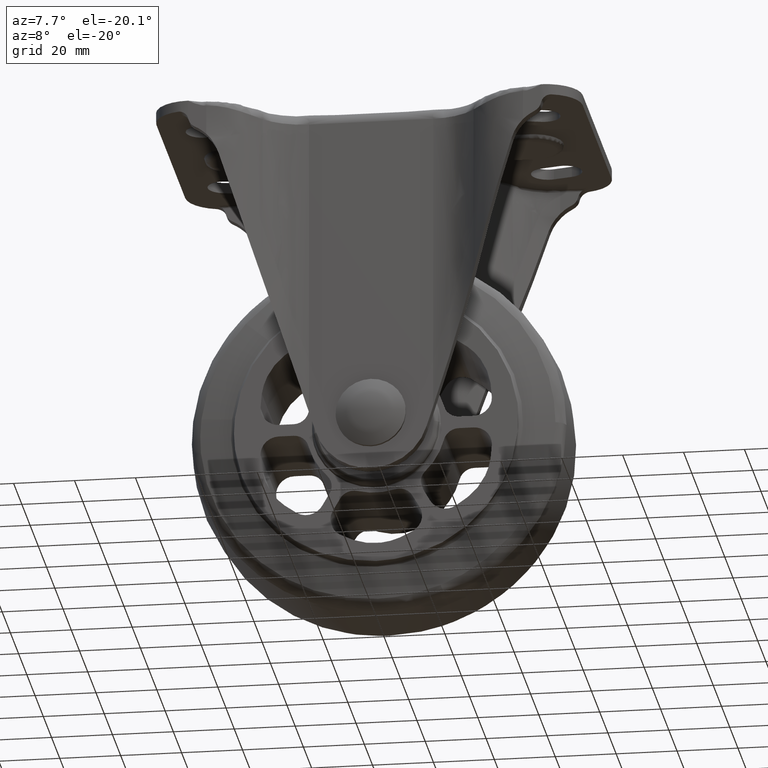
[diagram: clean part render]
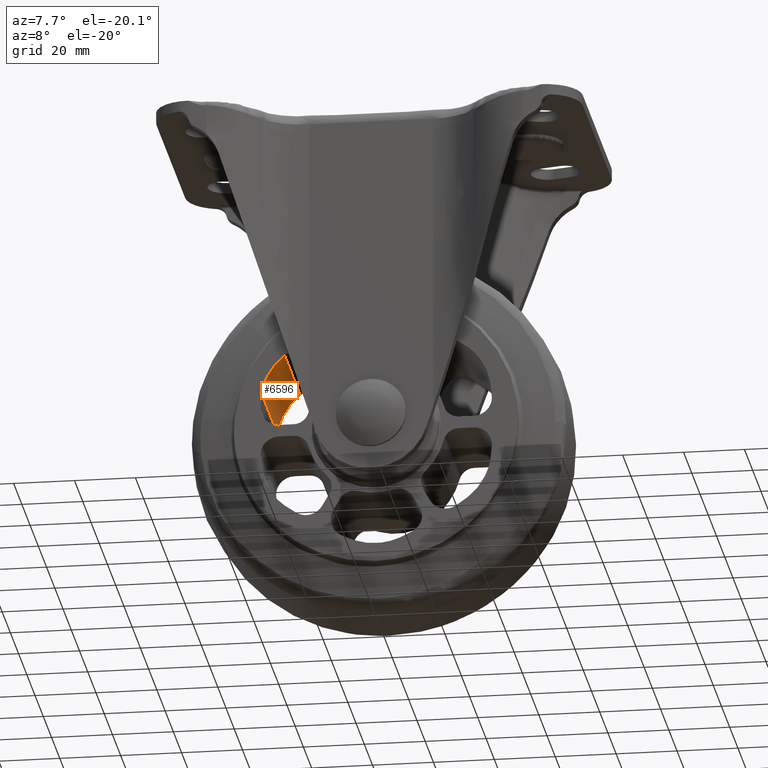
[diagram: same view with one face highlighted and labeled with its STEP entity id]
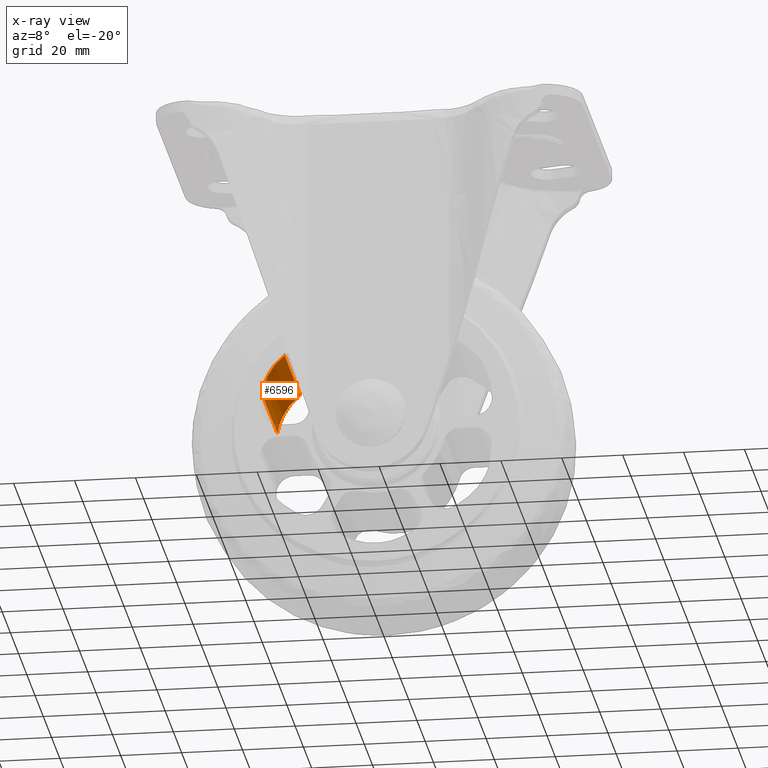
[diagram: x-ray of the same camera — body ghosted, the highlighted face saturated]
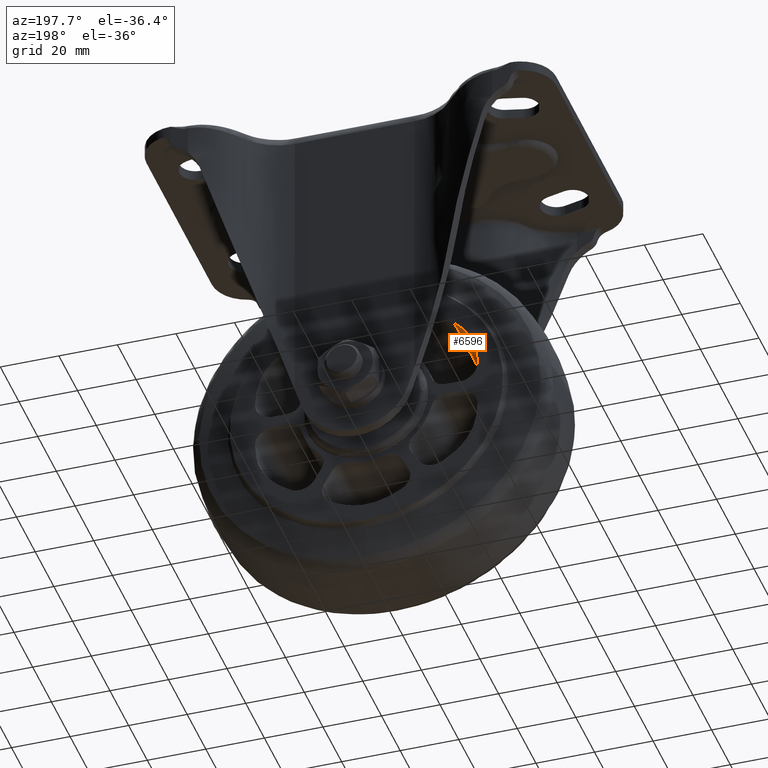
[diagram: same view with one face highlighted and labeled with its STEP entity id]
A machine part, auxiliary view. The second image highlights one B-rep face of the part: STEP entity #6596.
The next image is the same camera in x-ray: the body ghosted, the highlighted face saturated — about 2% of this face is hidden behind the body in this view.
A second angle (auxiliary view) of the same face is appended — the face is thin or edge-on in the first view.
In plain terms, the highlighted face is a freeform B-spline surface patch.
Its self-contained STEP definition (entity closure, byte-faithful):
#6505=CARTESIAN_POINT('',(-37.552911379032693,19.0,13.075621687332401));
#6506=VERTEX_POINT('',#6505);
#6520=CARTESIAN_POINT('',(-37.552911379032693,-19.0,13.075621687332401));
#6521=VERTEX_POINT('',#6520);
#6522=CARTESIAN_POINT('',(-37.552911379032693,-19.0,13.075621687332401));
#6523=CARTESIAN_POINT('',(-37.552911379032693,19.0,13.075621687332401));
#6524=QUASI_UNIFORM_CURVE('',1,(#6522,#6523),.UNSPECIFIED.,.F.,.U.);
#6525=EDGE_CURVE('',#6521,#6506,#6524,.T.);
#6544=CARTESIAN_POINT('',(-29.684178613397069,-19.949999999999999,26.301772765395320));
#6545=CARTESIAN_POINT('',(-29.684178613397069,19.973750000000010,26.301772765395320));
#6546=CARTESIAN_POINT('',(-36.728024758780798,-19.950000000000006,21.066356224788002));
#6547=CARTESIAN_POINT('',(-36.728024758780798,19.973750000000013,21.066356224788002));
#6548=CARTESIAN_POINT('',(-37.644239026163952,-19.950000000000010,12.337902393223935));
#6549=CARTESIAN_POINT('',(-37.644239026163952,19.973750000000010,12.337902393223935));
#6557=(BOUNDED_SURFACE()B_SPLINE_SURFACE(1,2,((#6544,#6546,#6548),(#6545,#6547,#6549)),.UNSPECIFIED.,.F.,.F.,.U.)B_SPLINE_SURFACE_WITH_KNOTS((2,2),(3,3),(0.0,39.923750000000013),(0.0,16.780526188268290),.UNSPECIFIED.)GEOMETRIC_REPRESENTATION_ITEM()RATIONAL_B_SPLINE_SURFACE(((1.0,0.914683645781261,0.997753592587325),(1.0,0.914683645781261,0.997753592587325)))REPRESENTATION_ITEM('')SURFACE());
#6558=CARTESIAN_POINT('',(-30.100276700937250,19.0,25.983964016145698));
#6559=VERTEX_POINT('',#6558);
#6560=CARTESIAN_POINT('',(-30.100276700937290,19.0,25.983964016145741));
#6561=CARTESIAN_POINT('',(-36.418278013829386,18.999999999999996,21.026102243458805));
#6562=CARTESIAN_POINT('',(-37.552911379032693,19.0,13.075621687332401));
#6570=(BOUNDED_CURVE()B_SPLINE_CURVE(2,(#6560,#6561,#6562),.UNSPECIFIED.,.F.,.U.)CURVE()GEOMETRIC_REPRESENTATION_ITEM()QUASI_UNIFORM_CURVE()RATIONAL_B_SPLINE_CURVE((1.0,0.927979301334205,1.0))REPRESENTATION_ITEM(''));
#6571=EDGE_CURVE('',#6559,#6506,#6570,.T.);
#6572=ORIENTED_EDGE('',*,*,#6571,.F.);
#6573=CARTESIAN_POINT('',(-30.100276700937250,-19.0,25.983964016145698));
#6574=VERTEX_POINT('',#6573);
#6575=CARTESIAN_POINT('',(-30.100276700937250,-19.0,25.983964016145698));
#6576=CARTESIAN_POINT('',(-30.100276700937250,19.0,25.983964016145698));
#6577=QUASI_UNIFORM_CURVE('',1,(#6575,#6576),.UNSPECIFIED.,.F.,.U.);
#6578=EDGE_CURVE('',#6574,#6559,#6577,.T.);
#6579=ORIENTED_EDGE('',*,*,#6578,.F.);
#6580=CARTESIAN_POINT('',(-30.100276700937290,-19.0,25.983964016145741));
#6581=CARTESIAN_POINT('',(-36.418278013829386,-18.999999999999996,21.026102243458805));
#6582=CARTESIAN_POINT('',(-37.552911379032693,-19.0,13.075621687332401));
#6590=(BOUNDED_CURVE()B_SPLINE_CURVE(2,(#6580,#6581,#6582),.UNSPECIFIED.,.F.,.U.)CURVE()GEOMETRIC_REPRESENTATION_ITEM()QUASI_UNIFORM_CURVE()RATIONAL_B_SPLINE_CURVE((1.0,0.927979301334205,1.0))REPRESENTATION_ITEM(''));
#6591=EDGE_CURVE('',#6574,#6521,#6590,.T.);
#6592=ORIENTED_EDGE('',*,*,#6591,.T.);
#6593=ORIENTED_EDGE('',*,*,#6525,.T.);
#6594=EDGE_LOOP('',(#6572,#6579,#6592,#6593));
#6595=FACE_OUTER_BOUND('',#6594,.T.);
#6596=ADVANCED_FACE('',(#6595),#6557,.F.);